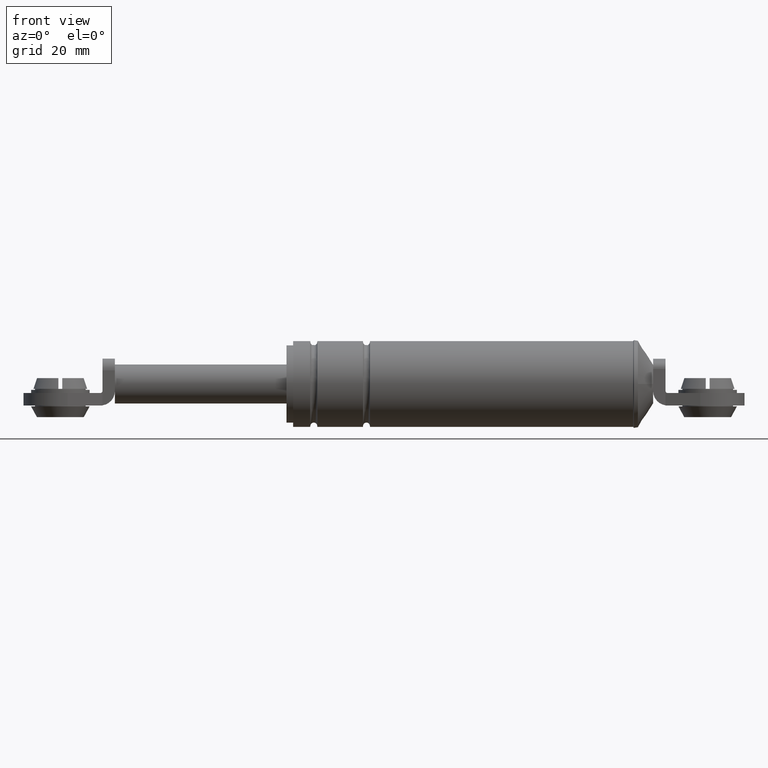
[diagram: clean part render]
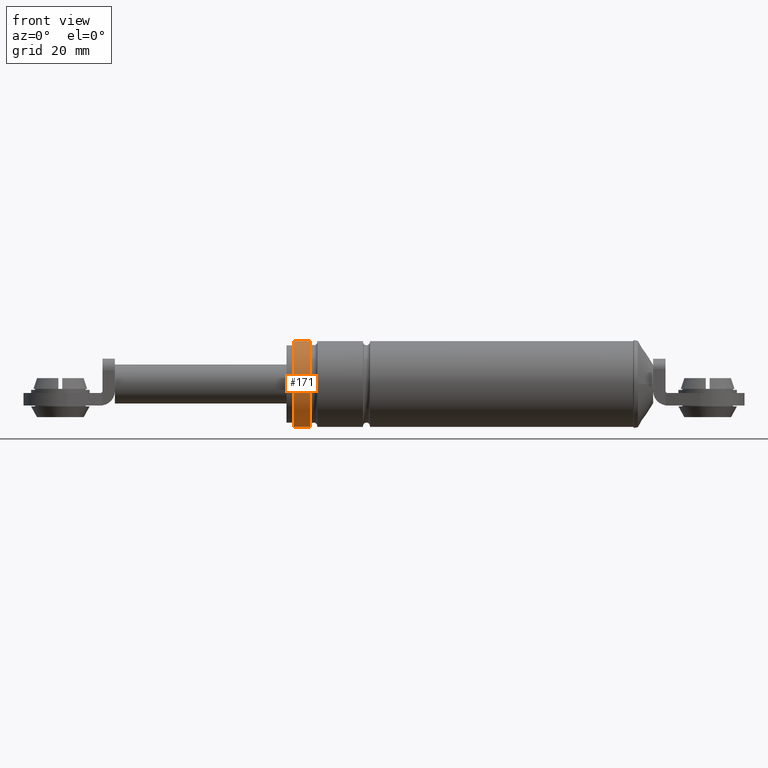
[diagram: same view with one face highlighted and labeled with its STEP entity id]
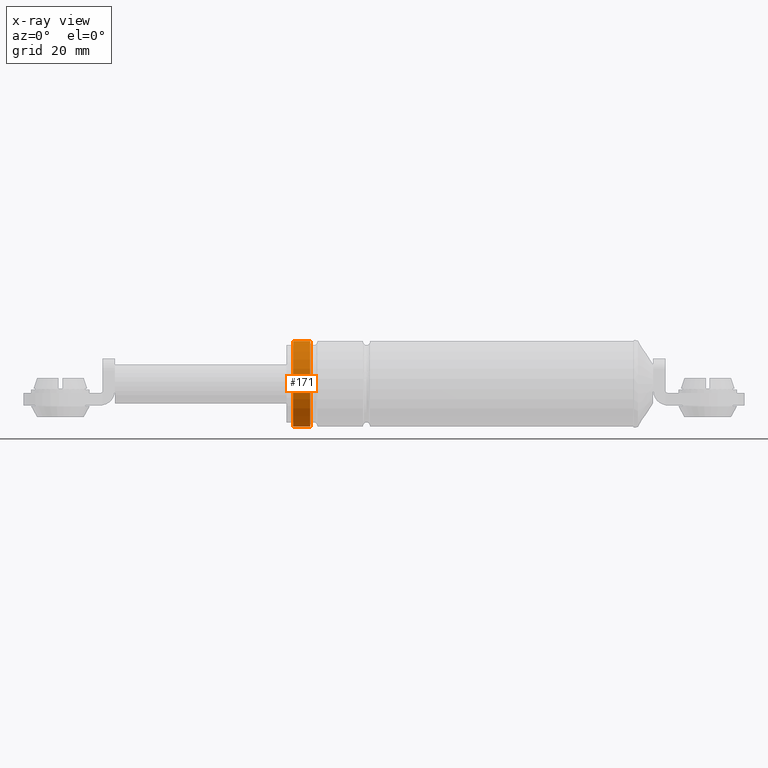
[diagram: x-ray of the same camera — body ghosted, the highlighted face saturated]
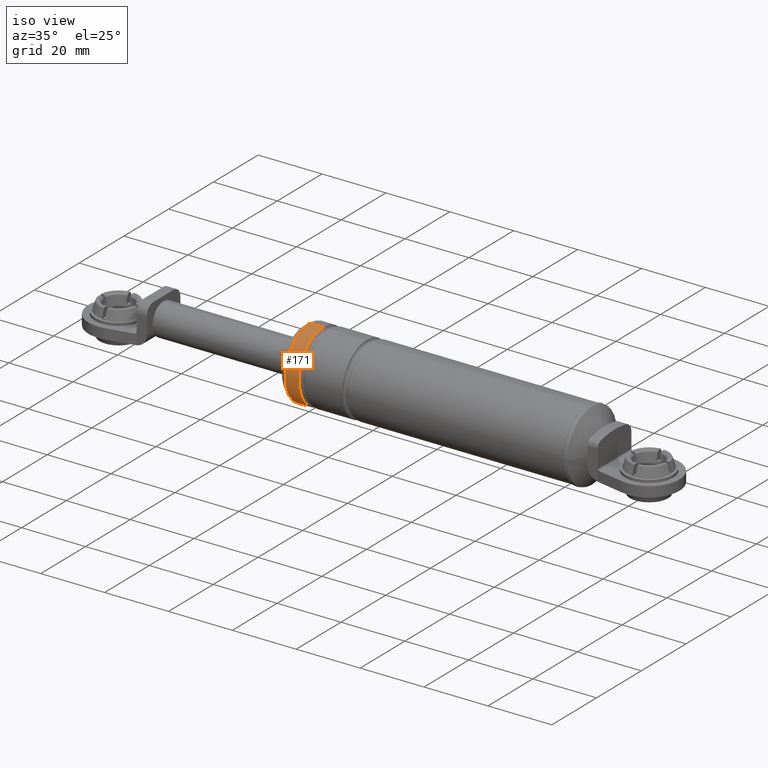
[diagram: same view with one face highlighted and labeled with its STEP entity id]
A machine part, front view. The second image highlights one B-rep face of the part: STEP entity #171.
The next image is the same camera in x-ray: the body ghosted, the highlighted face saturated — about 0% of this face is hidden behind the body in this view.
A second angle (iso view) of the same face is appended — the face is thin or edge-on in the first view.
In plain terms, the highlighted cylindrical surface (partial cylindrical patch) has radius 11 mm, axis along (1, 0, 0).
Its self-contained STEP definition (entity closure, byte-faithful):
#171=ADVANCED_FACE('',(#868),#867,.T.);
#867=CYLINDRICAL_SURFACE('',#2168,1.10000000001E+001);
#868=FACE_OUTER_BOUND('',#2169,.T.);
#2165=CARTESIAN_POINT('',(0.00000000000E+000,0.00000000000E+000,1.14952983996E+002));
#2166=DIRECTION('',(1.00000000000E+000,-0.00000000000E+000,-0.00000000000E+000));
#2167=DIRECTION('',(-0.00000000000E+000,-0.00000000000E+000,-1.00000000000E+000));
#2168=AXIS2_PLACEMENT_3D('',#2165,#2166,#2167);
#2169=EDGE_LOOP('',(#3164,#3165,#3166,#3167));
#3164=ORIENTED_EDGE('',*,*,#3697,.F.);
#3165=ORIENTED_EDGE('',*,*,#3800,.T.);
#3166=ORIENTED_EDGE('',*,*,#3700,.T.);
#3167=ORIENTED_EDGE('',*,*,#3801,.F.);
#3697=EDGE_CURVE('',#4466,#4465,#4473,.T.);
#3700=EDGE_CURVE('',#4493,#4494,#4495,.T.);
#3800=EDGE_CURVE('',#4466,#4493,#5152,.T.);
#3801=EDGE_CURVE('',#4465,#4494,#5158,.T.);
#4465=VERTEX_POINT('',#6858);
#4466=VERTEX_POINT('',#6859);
#4473=CIRCLE('',#6867,1.10000000001E+001);
#4493=VERTEX_POINT('',#6878);
#4494=VERTEX_POINT('',#6879);
#4495=CIRCLE('',#6883,1.10000000000E+001);
#5152=(BOUNDED_CURVE() B_SPLINE_CURVE(1,(#7332,#7333),.UNSPECIFIED.,.F.,.F.) B_SPLINE_CURVE_WITH_KNOTS((2,2),(8.33333313467E-002,9.16666670832E-001),.UNSPECIFIED.) CURVE() GEOMETRIC_REPRESENTATION_ITEM() RATIONAL_B_SPLINE_CURVE((1.00000000000E+000,1.00000000000E+000)) REPRESENTATION_ITEM('') );
#5158=(BOUNDED_CURVE() B_SPLINE_CURVE(1,(#7334,#7335),.UNSPECIFIED.,.F.,.F.) B_SPLINE_CURVE_WITH_KNOTS((2,2),(8.33333333333E-002,9.16666666667E-001),.UNSPECIFIED.) CURVE() GEOMETRIC_REPRESENTATION_ITEM() RATIONAL_B_SPLINE_CURVE((7.50000000000E-001,7.50000000000E-001)) REPRESENTATION_ITEM('') );
#6858=CARTESIAN_POINT('',(1.80142105705E+002,0.00000000000E+000,1.25952983996E+002));
#6859=CARTESIAN_POINT('',(1.80142105705E+002,5.92118946467E-016,1.03952983996E+002));
#6864=CARTESIAN_POINT('',(1.80142105705E+002,0.00000000000E+000,1.14952983996E+002));
#6865=DIRECTION('',(-1.00000000000E+000,0.00000000000E+000,0.00000000000E+000));
#6866=DIRECTION('',(0.00000000000E+000,-1.22460635382E-016,1.00000000000E+000));
#6867=AXIS2_PLACEMENT_3D('',#6864,#6865,#6866);
#6878=CARTESIAN_POINT('',(1.84542105705E+002,5.92118946467E-016,1.03952983996E+002));
#6879=CARTESIAN_POINT('',(1.84542105705E+002,0.00000000000E+000,1.25952983996E+002));
#6880=CARTESIAN_POINT('',(1.84542105705E+002,0.00000000000E+000,1.14952983996E+002));
#6881=DIRECTION('',(-1.00000000000E+000,0.00000000000E+000,0.00000000000E+000));
#6882=DIRECTION('',(0.00000000000E+000,-1.22460635382E-016,1.00000000000E+000));
#6883=AXIS2_PLACEMENT_3D('',#6880,#6881,#6882);
#7332=CARTESIAN_POINT('',(1.80142105694E+002,0.00000000000E+000,1.03952983996E+002));
#7333=CARTESIAN_POINT('',(1.84542105727E+002,0.00000000000E+000,1.03952983996E+002));
#7334=CARTESIAN_POINT('',(1.80142105705E+002,0.00000000000E+000,1.25952983996E+002));
#7335=CARTESIAN_POINT('',(1.84542105705E+002,0.00000000000E+000,1.25952983996E+002));